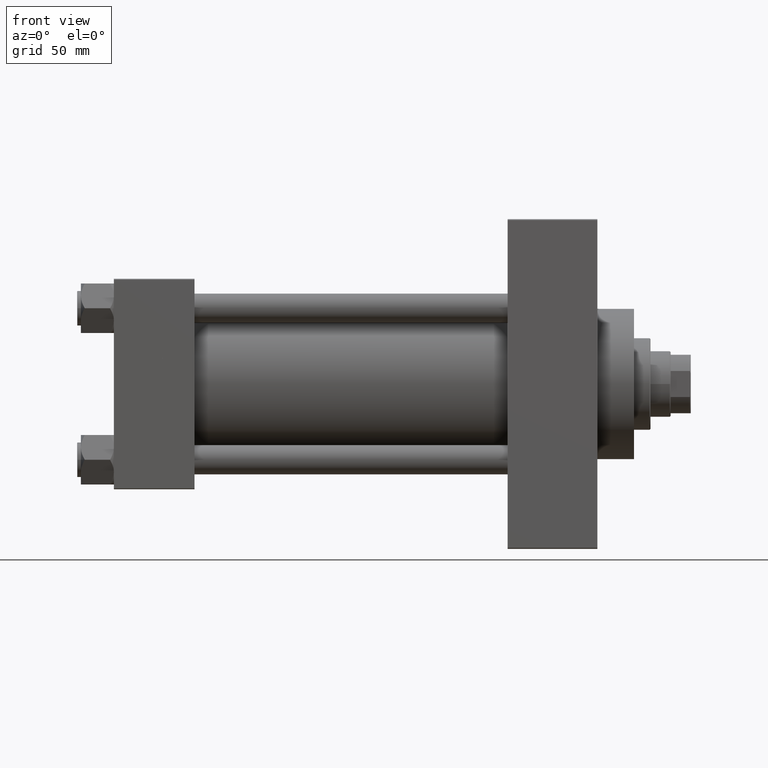
[diagram: clean part render]
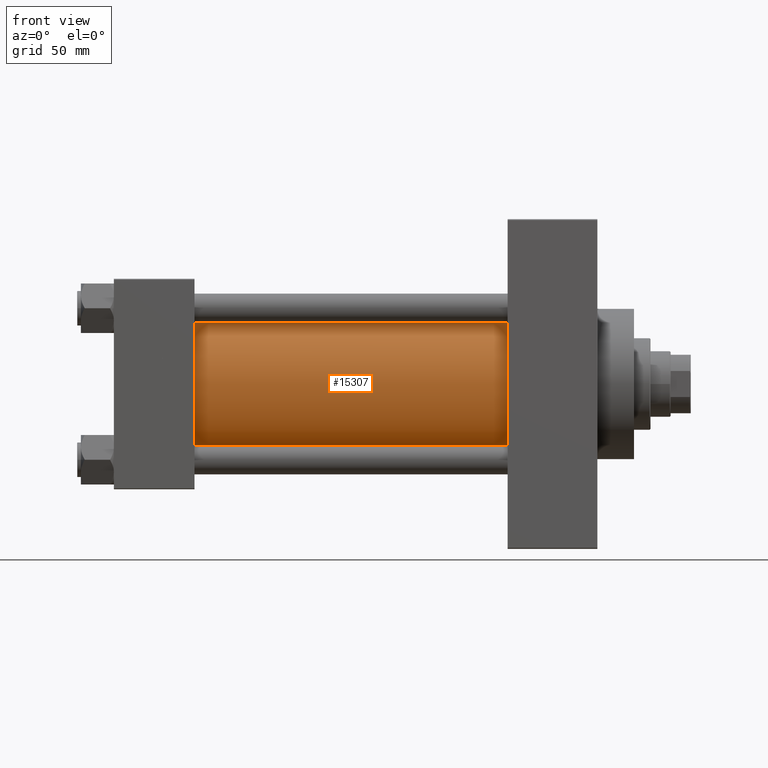
[diagram: same view with one face highlighted and labeled with its STEP entity id]
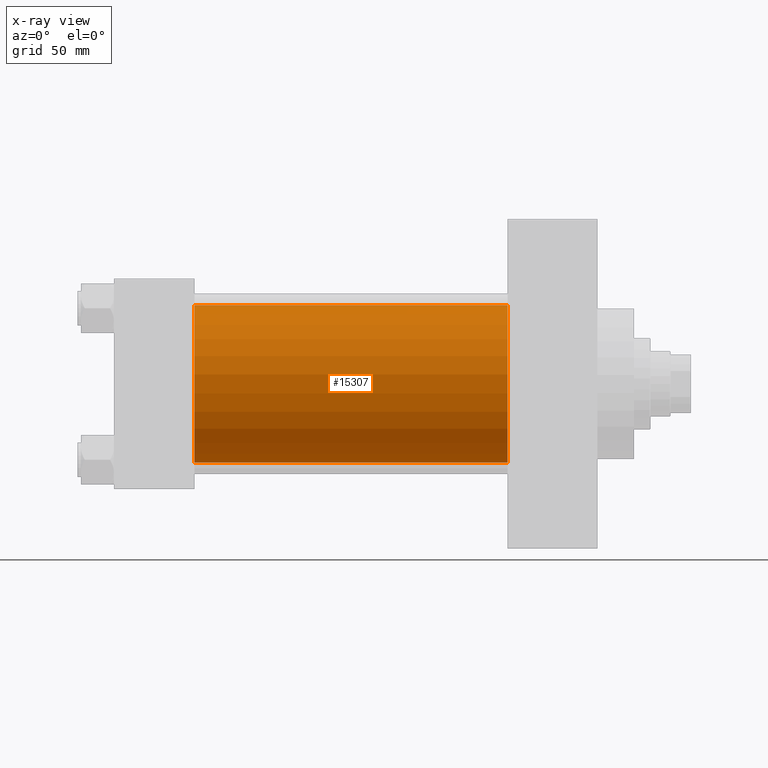
[diagram: x-ray of the same camera — body ghosted, the highlighted face saturated]
A machine part, front view. The second image highlights one B-rep face of the part: STEP entity #15307.
The next image is the same camera in x-ray: the body ghosted, the highlighted face saturated — about 2% of this face is hidden behind the body in this view.
In plain terms, the highlighted cylindrical surface (partial cylindrical patch) has radius 43 mm, axis along (-1, -0, -0).
Its self-contained STEP definition (entity closure, byte-faithful):
#331 = LINE ( 'NONE', #8127, #16495 ) ;
#857 = DIRECTION ( 'NONE',  ( 1.000000000000000000, -0.000000000000000000, 0.000000000000000000 ) ) ;
#2641 = VERTEX_POINT ( 'NONE', #17071 ) ;
#3503 = CARTESIAN_POINT ( 'NONE',  ( 215.0000000000000284, -2.602085213965210642E-15, 0.000000000000000000 ) ) ;
#3608 = AXIS2_PLACEMENT_3D ( 'NONE', #35010, #46347, #11858 ) ;
#6913 = LINE ( 'NONE', #40903, #11750 ) ;
#7351 = EDGE_CURVE ( 'NONE', #9299, #32964, #331, .T. ) ;
#8127 = CARTESIAN_POINT ( 'NONE',  ( 215.0000000000000284, 2.663896022368408223E-15, -43.00000000000000000 ) ) ;
#8705 = ORIENTED_EDGE ( 'NONE', *, *, #48652, .F. ) ;
#9299 = VERTEX_POINT ( 'NONE', #37678 ) ;
#11750 = VECTOR ( 'NONE', #44693, 1000.000000000000000 ) ;
#11858 = DIRECTION ( 'NONE',  ( 0.000000000000000000, 0.000000000000000000, -1.000000000000000000 ) ) ;
#12191 = CARTESIAN_POINT ( 'NONE',  ( 43.99999999999998579, -2.602085213965210642E-15, 0.000000000000000000 ) ) ;
#12490 = CIRCLE ( 'NONE', #3608, 43.00000000000000000 ) ;
#14831 = DIRECTION ( 'NONE',  ( -1.000000000000000000, -0.000000000000000000, -0.000000000000000000 ) ) ;
#15307 = ADVANCED_FACE ( 'NONE', ( #26435 ), #22890, .T. ) ;
#16495 = VECTOR ( 'NONE', #22985, 1000.000000000000000 ) ;
#17071 = CARTESIAN_POINT ( 'NONE',  ( 43.99999999999998579, -2.602085213965210642E-15, 43.00000000000000000 ) ) ;
#17176 = ORIENTED_EDGE ( 'NONE', *, *, #47655, .T. ) ;
#22890 = CYLINDRICAL_SURFACE ( 'NONE', #36354, 43.00000000000000000 ) ;
#22985 = DIRECTION ( 'NONE',  ( -1.000000000000000000, -0.000000000000000000, -0.000000000000000000 ) ) ;
#26241 = EDGE_LOOP ( 'NONE', ( #43994, #8705, #17176, #33976 ) ) ;
#26435 = FACE_OUTER_BOUND ( 'NONE', #26241, .T. ) ;
#27562 = DIRECTION ( 'NONE',  ( 0.000000000000000000, 0.000000000000000000, 1.000000000000000000 ) ) ;
#30450 = EDGE_CURVE ( 'NONE', #2641, #32964, #34406, .T. ) ;
#32668 = CARTESIAN_POINT ( 'NONE',  ( 43.99999999999998579, 2.663896022368408223E-15, -43.00000000000000000 ) ) ;
#32964 = VERTEX_POINT ( 'NONE', #32668 ) ;
#33976 = ORIENTED_EDGE ( 'NONE', *, *, #30450, .T. ) ;
#34406 = CIRCLE ( 'NONE', #44739, 43.00000000000000000 ) ;
#35010 = CARTESIAN_POINT ( 'NONE',  ( 215.0000000000000284, -2.602085213965210642E-15, 0.000000000000000000 ) ) ;
#36354 = AXIS2_PLACEMENT_3D ( 'NONE', #3503, #14831, #41776 ) ;
#36625 = CARTESIAN_POINT ( 'NONE',  ( 215.0000000000000284, -2.602085213965210642E-15, 43.00000000000000000 ) ) ;
#37678 = CARTESIAN_POINT ( 'NONE',  ( 215.0000000000000284, 2.663896022368408223E-15, -43.00000000000000000 ) ) ;
#40903 = CARTESIAN_POINT ( 'NONE',  ( 215.0000000000000284, -2.602085213965210642E-15, 43.00000000000000000 ) ) ;
#41776 = DIRECTION ( 'NONE',  ( 0.000000000000000000, 0.000000000000000000, 1.000000000000000000 ) ) ;
#43994 = ORIENTED_EDGE ( 'NONE', *, *, #7351, .F. ) ;
#44693 = DIRECTION ( 'NONE',  ( -1.000000000000000000, -0.000000000000000000, -0.000000000000000000 ) ) ;
#44739 = AXIS2_PLACEMENT_3D ( 'NONE', #12191, #857, #27562 ) ;
#46347 = DIRECTION ( 'NONE',  ( 1.000000000000000000, 0.000000000000000000, 0.000000000000000000 ) ) ;
#47585 = VERTEX_POINT ( 'NONE', #36625 ) ;
#47655 = EDGE_CURVE ( 'NONE', #47585, #2641, #6913, .T. ) ;
#48652 = EDGE_CURVE ( 'NONE', #47585, #9299, #12490, .T. ) ;